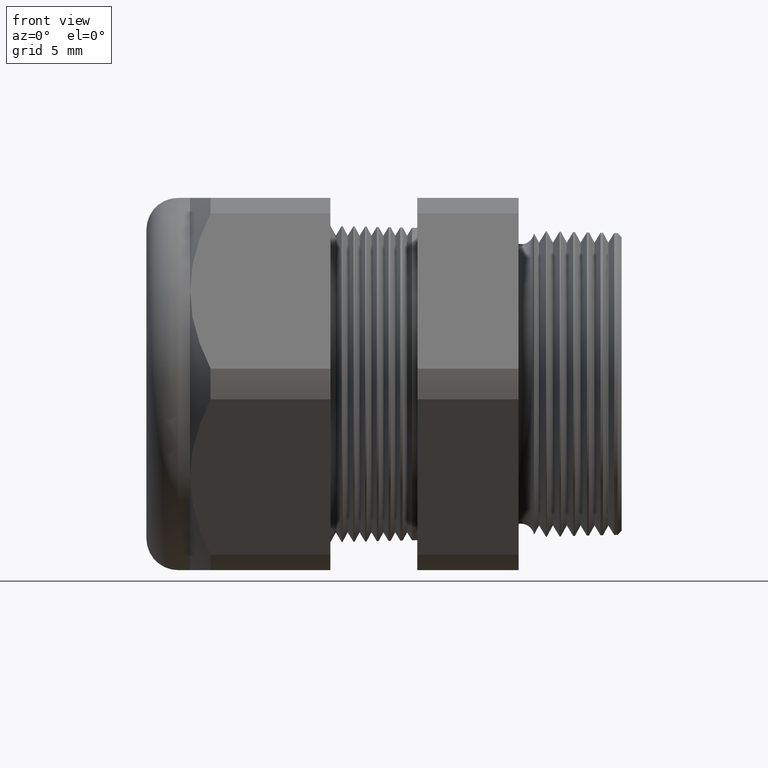
[diagram: clean part render]
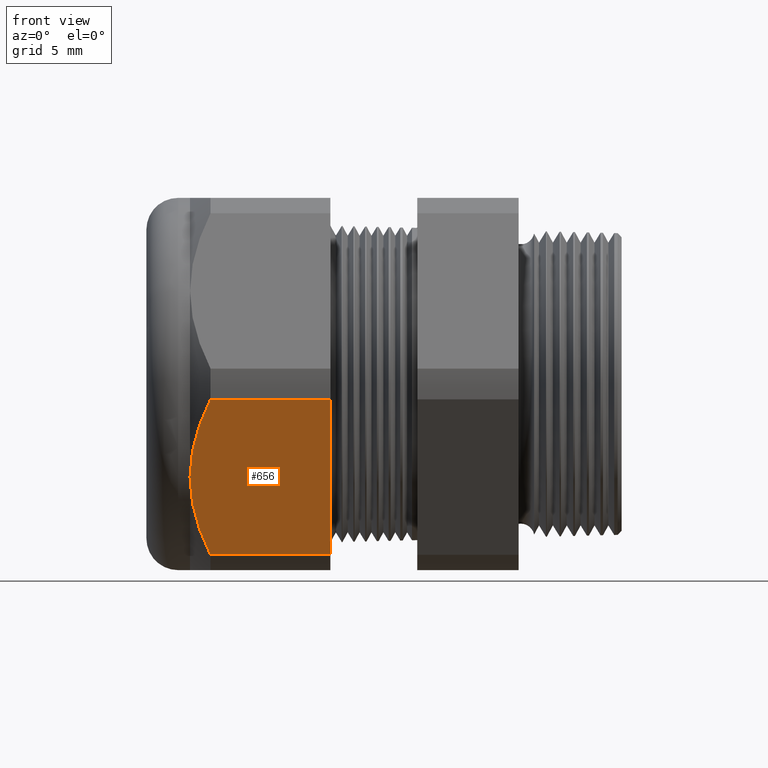
[diagram: same view with one face highlighted and labeled with its STEP entity id]
A machine part, front view. The second image highlights one B-rep face of the part: STEP entity #656.
In plain terms, the highlighted planar face has unit normal (0, -0.866, -0.5).
Its self-contained STEP definition (entity closure, byte-faithful):
#15 = EDGE_CURVE ( 'NONE', #17, #3272, #1049, .T. ) ;
#17 = VERTEX_POINT ( 'NONE', #1041 ) ;
#23 = EDGE_CURVE ( 'NONE', #636, #17, #1082, .T. ) ;
#24 = ORIENTED_EDGE ( 'NONE', *, *, #23, .F. ) ;
#36 = EDGE_CURVE ( 'NONE', #47, #3272, #1104, .T. ) ;
#43 = ORIENTED_EDGE ( 'NONE', *, *, #36, .T. ) ;
#47 = VERTEX_POINT ( 'NONE', #1141 ) ;
#49 = ORIENTED_EDGE ( 'NONE', *, *, #15, .F. ) ;
#628 = ORIENTED_EDGE ( 'NONE', *, *, #638, .T. ) ;
#635 = VERTEX_POINT ( 'NONE', #2135 ) ;
#636 = VERTEX_POINT ( 'NONE', #2134 ) ;
#637 = ORIENTED_EDGE ( 'NONE', *, *, #652, .T. ) ;
#638 = EDGE_CURVE ( 'NONE', #635, #47, #2129, .T. ) ;
#647 = EDGE_LOOP ( 'NONE', ( #637, #628, #43, #49, #24 ) ) ;
#652 = EDGE_CURVE ( 'NONE', #636, #635, #2223, .T. ) ;
#656 = ADVANCED_FACE ( 'NONE', ( #2207 ), #2206, .T. ) ;
#1041 = CARTESIAN_POINT ( 'NONE',  ( -0.7854330708661413400, -0.2938165587564944800, -0.4310947921287051100 ) ) ;
#1042 = DIRECTION ( 'NONE',  ( -1.000000000000000000, 0.0000000000000000000, 0.0000000000000000000 ) ) ;
#1043 = VECTOR ( 'NONE', #1042, 39.37007874015748100 ) ;
#1044 = CARTESIAN_POINT ( 'NONE',  ( -0.05000000000000001000, -0.2938165587564944800, -0.4310947921287051100 ) ) ;
#1049 = LINE ( 'NONE', #1044, #1043 ) ;
#1076 = DIRECTION ( 'NONE',  ( 0.0000000000000000000, 0.4999999999999998900, -0.8660254037844386000 ) ) ;
#1077 = VECTOR ( 'NONE', #1076, 39.37007874015748900 ) ;
#1078 = CARTESIAN_POINT ( 'NONE',  ( -0.7854330708661413400, -0.3070319397786861500, -0.4082050807568877200 ) ) ;
#1082 = LINE ( 'NONE', #1078, #1077 ) ;
#1096 = CARTESIAN_POINT ( 'NONE',  ( -1.088063779527558500, -0.2938165587564944800, -0.4310947921287051100 ) ) ;
#1097 = CARTESIAN_POINT ( 'NONE',  ( -1.103717189021965700, -0.3118494083116968900, -0.3998609804938487200 ) ) ;
#1098 = CARTESIAN_POINT ( 'NONE',  ( -1.116822062588142000, -0.3304876304616240500, -0.3675786327674195900 ) ) ;
#1099 = CARTESIAN_POINT ( 'NONE',  ( -1.134818111347314800, -0.3682441305491640500, -0.3021824562998214900 ) ) ;
#1100 = CARTESIAN_POINT ( 'NONE',  ( -1.139763779527558600, -0.3874426189162283300, -0.2689296990195460000 ) ) ;
#1101 = CARTESIAN_POINT ( 'NONE',  ( -1.139763779527558600, -0.4070319397786862400, -0.2350000000000001000 ) ) ;
#1104 = B_SPLINE_CURVE_WITH_KNOTS ( 'NONE', 3,
 ( #1101, #1100, #1099, #1098, #1097, #1096 ),
 .UNSPECIFIED., .F., .F.,
 ( 4, 2, 4 ),
 ( 0.005903107334592312500, 0.008852512982428777100, 0.01180191863026524100 ),
 .UNSPECIFIED. ) ;
#1141 = CARTESIAN_POINT ( 'NONE',  ( -1.139763779527558600, -0.4070319397786862400, -0.2350000000000001000 ) ) ;
#2129 = B_SPLINE_CURVE_WITH_KNOTS ( 'NONE', 3,
 ( #2133, #2132, #2190, #2189, #2188, #2187, #2186, #2185, #2184, #2183 ),
 .UNSPECIFIED., .F., .F.,
 ( 4, 2, 2, 2, 4 ),
 ( 2.483251536673362800E-007, 0.002951677829872990800, 0.004427392582232650600, 0.005165249958412481600, 0.005903107334592312500 ),
 .UNSPECIFIED. ) ;
#2132 = CARTESIAN_POINT ( 'NONE',  ( -1.103697825203295200, -0.5022367785154769900, -0.07010038218147669800 ) ) ;
#2133 = CARTESIAN_POINT ( 'NONE',  ( -1.088063779527558500, -0.5202473208008777700, -0.03890520787129508200 ) ) ;
#2134 = CARTESIAN_POINT ( 'NONE',  ( -0.7854330708661413400, -0.5202473208008777700, -0.03890520787129508200 ) ) ;
#2135 = CARTESIAN_POINT ( 'NONE',  ( -1.088063779527558500, -0.5202473208008777700, -0.03890520787129508200 ) ) ;
#2183 = CARTESIAN_POINT ( 'NONE',  ( -1.139763779527558600, -0.4070319397786862400, -0.2350000000000001000 ) ) ;
#2184 = CARTESIAN_POINT ( 'NONE',  ( -1.139763779527558400, -0.4119326305003305800, -0.2265117546779304200 ) ) ;
#2185 = CARTESIAN_POINT ( 'NONE',  ( -1.139453644849873300, -0.4168781440523186000, -0.2179458739363668000 ) ) ;
#2186 = CARTESIAN_POINT ( 'NONE',  ( -1.138221849142434300, -0.4267040029977488000, -0.2009269870148765500 ) ) ;
#2187 = CARTESIAN_POINT ( 'NONE',  ( -1.137304216752655300, -0.4315793332085025000, -0.1924826673861758900 ) ) ;
#2188 = CARTESIAN_POINT ( 'NONE',  ( -1.133700751481474800, -0.4460993342073096300, -0.1673332879302910400 ) ) ;
#2189 = CARTESIAN_POINT ( 'NONE',  ( -1.130164085422760800, -0.4556379823307484800, -0.1508118647449733500 ) ) ;
#2190 = CARTESIAN_POINT ( 'NONE',  ( -1.116620445010037900, -0.4838883643614173600, -0.1018807677346240400 ) ) ;
#2202 = DIRECTION ( 'NONE',  ( 0.0000000000000000000, 0.4999999999999998900, -0.8660254037844386000 ) ) ;
#2203 = DIRECTION ( 'NONE',  ( 0.0000000000000000000, -0.8660254037844387100, -0.4999999999999999400 ) ) ;
#2204 = CARTESIAN_POINT ( 'NONE',  ( -0.05000000000000001000, -0.2938165587564945900, -0.4310947921287051100 ) ) ;
#2205 = AXIS2_PLACEMENT_3D ( 'NONE', #2204, #2203, #2202 ) ;
#2206 = PLANE ( 'NONE',  #2205 ) ;
#2207 = FACE_OUTER_BOUND ( 'NONE', #647, .T. ) ;
#2220 = DIRECTION ( 'NONE',  ( -1.000000000000000000, 0.0000000000000000000, 0.0000000000000000000 ) ) ;
#2221 = VECTOR ( 'NONE', #2220, 39.37007874015748100 ) ;
#2222 = CARTESIAN_POINT ( 'NONE',  ( -0.05000000000000001000, -0.5202473208008777700, -0.03890520787129508200 ) ) ;
#2223 = LINE ( 'NONE', #2222, #2221 ) ;
#2936 = CARTESIAN_POINT ( 'NONE',  ( -1.088063779527558500, -0.2938165587564944800, -0.4310947921287051100 ) ) ;
#3272 = VERTEX_POINT ( 'NONE', #2936 ) ;